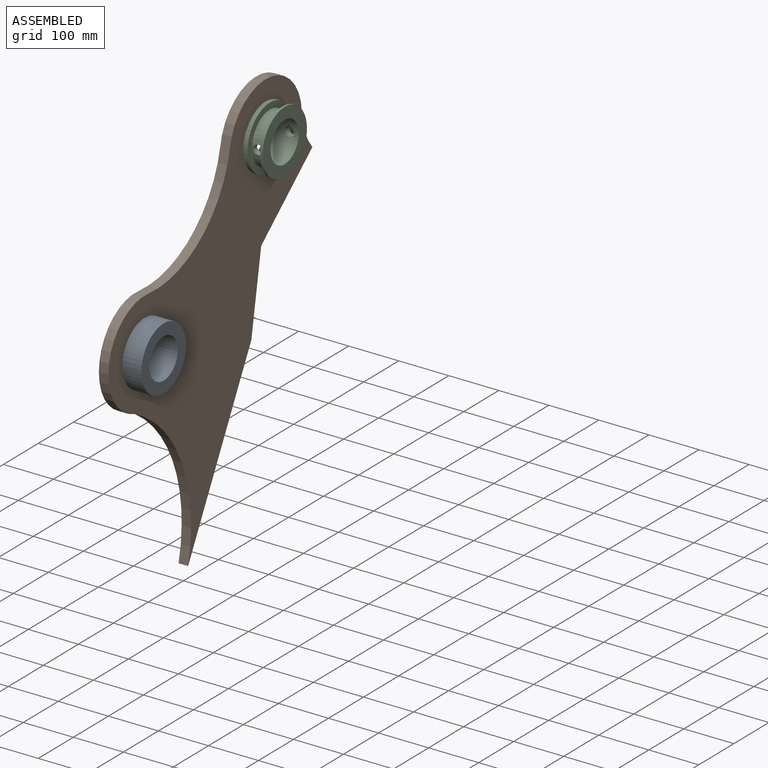
[diagram: assembled view]
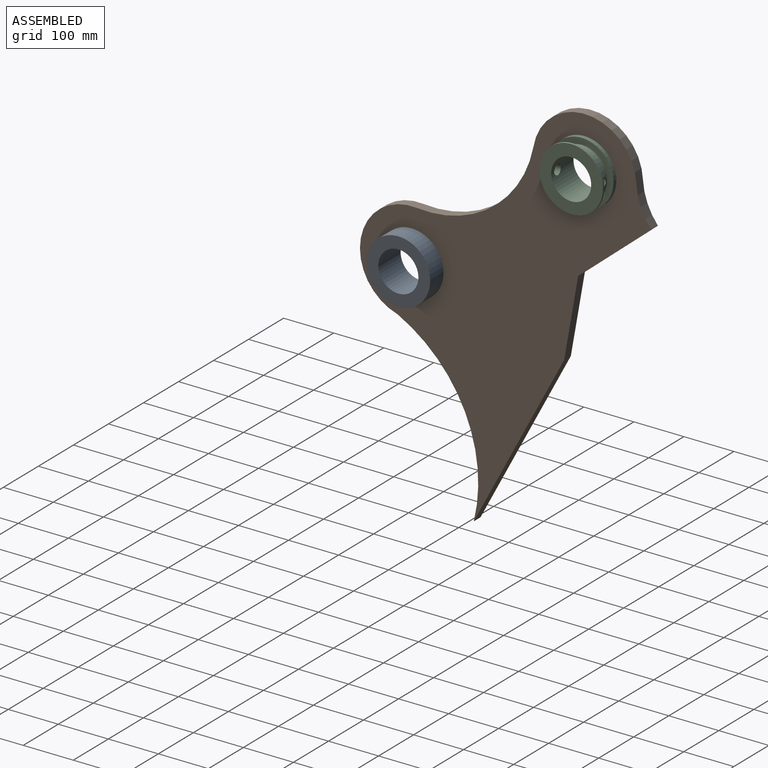
[diagram: assembled view, second angle]
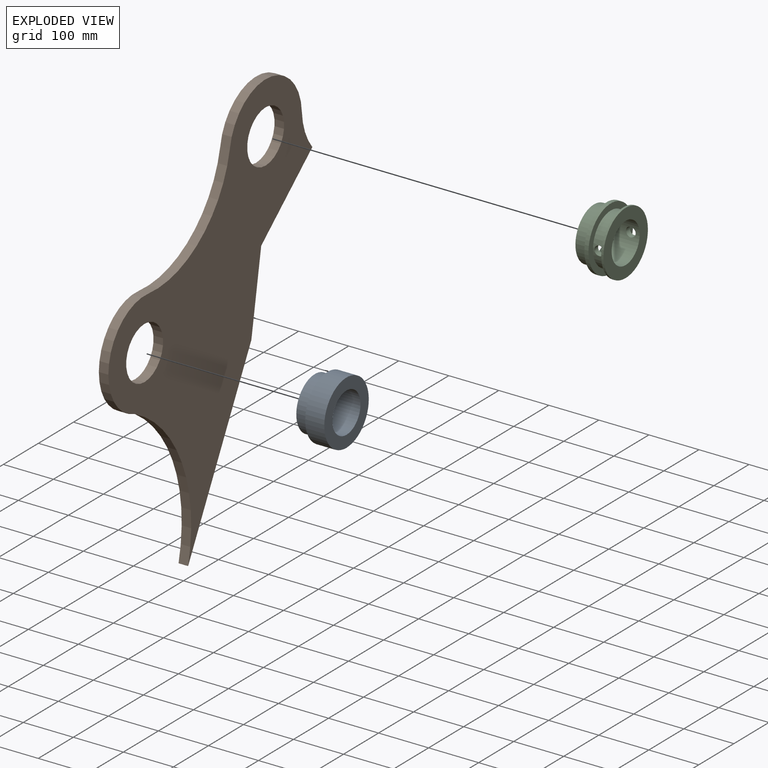
[diagram: exploded view]
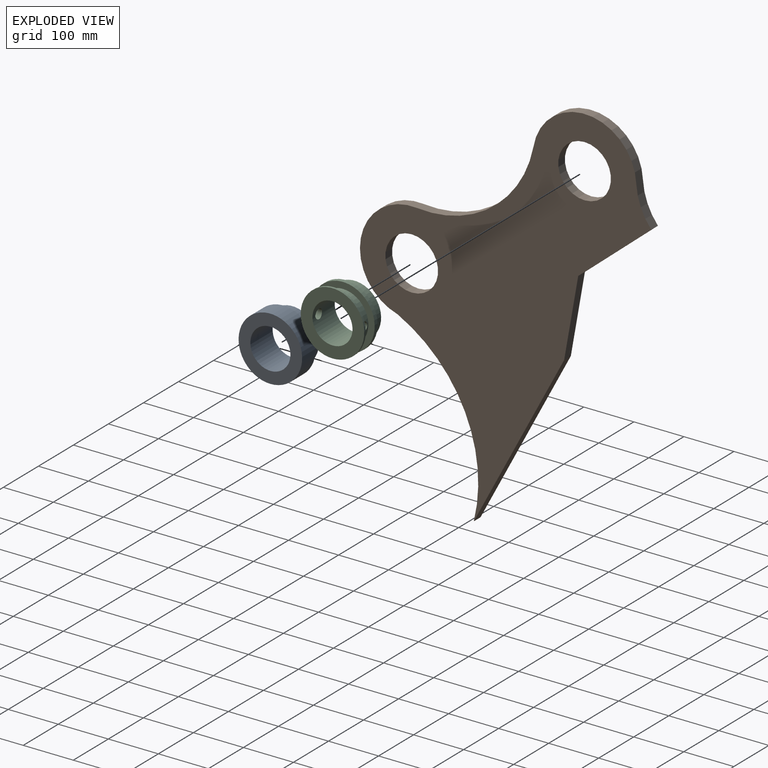
[diagram: exploded view, second angle]
ASSEMBLY  parts=3 mates=2
PART A: 6 faces, bbox 63.5x127x127 mm
  f0: cylinder r=63.5mm len=127mm, axis (-1,0,0), area 15201.2mm2, adj f2,f3
  f1: cylinder r=40mm len=80.01mm, axis (-1,0,0), area 15961.3mm2, adj f2,f5
  f2: plane 127x127mm, normal (1,0,0), area 7639.9mm2, adj f0,f1
  f3: plane 127x127mm, normal (-1,0,0), area 3940.9mm2, adj f0,f4
  f4: cylinder r=52.7mm len=105.41mm, axis (1,0,0), area 8411.3mm2, adj f3,f5
  f5: plane 105.41x105.41mm, normal (-1,0,0), area 3699mm2, adj f1,f4
PART B: 12 faces, bbox 19.1x582.2x795.2 mm
  f0: cylinder r=103.5mm len=205.58mm, axis (-1,0,0), area 5792.4mm2, adj f1,f8,f10,f11
  f1: cylinder r=216.17mm len=233.12mm, axis (-1,0,0), area 6056.9mm2, adj f0,f2,f10,f11
  f2: cylinder r=103.5mm len=203.17mm, axis (-1,0,0), area 5849.3mm2, adj f1,f3,f10,f11
  f3: cylinder r=292.85mm len=332.92mm, axis (-1,0,0), area 7530.9mm2, adj f2,f4,f10,f11
  f4: plane 339.55x180.54mm, normal (0,0.88,-0.47), area 7325.9mm2, adj f3,f5,f10,f11
  f5: plane 159.47x28.12mm, normal (0,0.98,-0.17), area 3084.7mm2, adj f4,f6,f10,f11
  f6: plane 145.93x122.45mm, normal (0,0.64,-0.77), area 3629mm2, adj f5,f8,f10,f11
  f7: cylinder r=52.7mm len=105.41mm, axis (-1,0,0), area 6308.5mm2, adj f10,f11
  f8: cylinder r=128.65mm len=74.72mm, axis (-1,0,0), area 1558.9mm2, adj f0,f6,f10,f11
  f9: cylinder r=52.7mm len=105.41mm, axis (-1,0,0), area 6308.5mm2, adj f10,f11
  f10: plane 795.17x582.19mm, normal (1,0,0), area 160658.9mm2, adj f0,f1,f2,f3,f4,f5,f6,f7
  f11: plane 795.17x582.19mm, normal (-1,0,0), area 160658.9mm2, adj f0,f1,f2,f3,f4,f5,f6,f7
PART C: 12 faces, bbox 63.5x127x127 mm
  f0: cylinder r=63.5mm len=127mm, axis (-1,0,0), area 3315.8mm2, adj f4,f7
  f1: cylinder r=63.5mm len=127mm, axis (-1,0,0), area 1751.3mm2, adj f3,f8
  f2: cylinder r=40mm len=80.01mm, axis (-1,0,0), area 15387.4mm2, adj f3,f6,f10,f11
  f3: plane 127x127mm, normal (1,0,0), area 7639.9mm2, adj f1,f2
  f4: plane 127x127mm, normal (-1,0,0), area 3940.9mm2, adj f0,f5
  f5: cylinder r=52.7mm len=105.41mm, axis (1,0,0), area 8411.3mm2, adj f4,f6
  f6: plane 105.41x105.41mm, normal (-1,0,0), area 3699mm2, adj f2,f5
  f7: plane 127x127mm, normal (1,0,0), area 4560.4mm2, adj f0,f9
  f8: plane 127x127mm, normal (-1,0,0), area 4560.4mm2, adj f1,f9
  f9: cylinder r=50.8mm len=101.6mm, axis (1,0,0), area 7534.8mm2, adj f7,f8,f10,f11
  f10: cylinder r=9.53mm len=19.05mm, axis (0,-1,0), area 653.5mm2, adj f2,f9
  f11: cylinder r=9.53mm len=19.05mm, axis (0,-1,0), area 653.4mm2, adj f2,f9
PLACE A t=(91.99,0.64,-84.21)mm
PLACE B t=(72.94,346.08,-84.21)mm
PLACE C t=(91.99,346.08,174.87)mm
MATE fastened B.f7 <-> A.f0  axis (1,0,0) through (91.99,0.64,-84.21)mm
MATE fastened C.f0 <-> B.f9  axis (-1,0,0) through (91.99,346.08,174.87)mm
